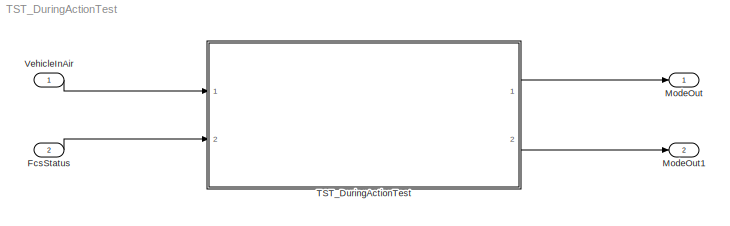
MODEL TST_DuringActionTest
KIND model
BLOCK [Inport] FcsStatus
  IconDisplay = Port number
  OutDataTypeStr = Bus: FCS_FlightControlSystem_Status
  Port = 2
  SID = 168
BLOCK [Outport] ModeOut
  IconDisplay = Port number
  OutDataTypeStr = int32
  PortDimensions = 1
  SID = 169
BLOCK [Outport] ModeOut1
  IconDisplay = Port number
  OutDataTypeStr = int32
  Port = 2
  PortDimensions = 1
  SID = 172
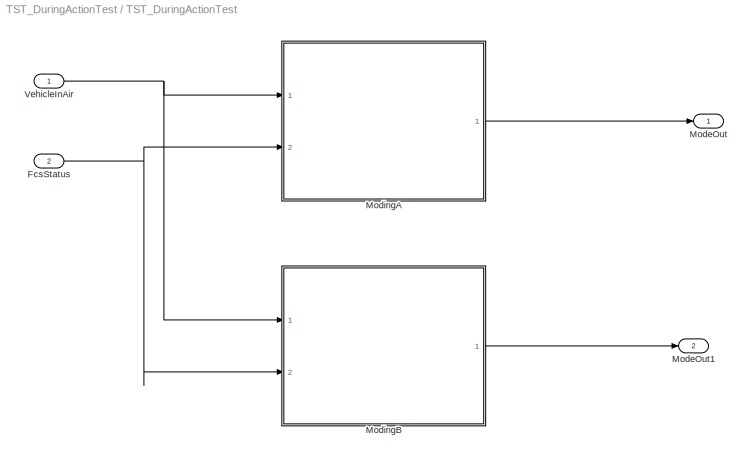
BLOCK [SubSystem] TST_DuringActionTest
  Ports = [2, 2]
  RequestExecContextInheritance = off
  SID = 160
  TreatAsAtomicUnit = on
BLOCK [Inport] TST_DuringActionTest/FcsStatus
  IconDisplay = Port number
  OutDataTypeStr = Bus: FCS_FlightControlSystem_Status
  Port = 2
  SID = 164
BLOCK [Outport] TST_DuringActionTest/ModeOut
  IconDisplay = Port number
  OutDataTypeStr = int32
  PortDimensions = 1
  SID = 166
BLOCK [Outport] TST_DuringActionTest/ModeOut1
  IconDisplay = Port number
  OutDataTypeStr = int32
  Port = 2
  PortDimensions = 1
  SID = 171
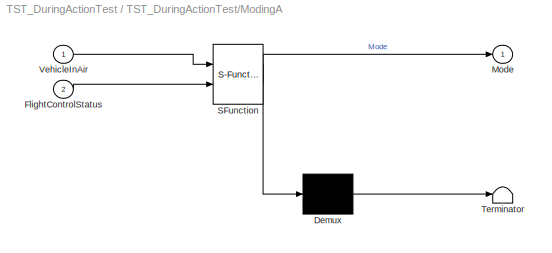
BLOCK [SubSystem] TST_DuringActionTest/ModingA
  ErrorFcn = Stateflow.Translate.translate
  PermitHierarchicalResolution = ExplicitOnly
  Ports = [2, 1]
  RequestExecContextInheritance = off
  SFBlockType = Chart
  SID = 165
  TreatAsAtomicUnit = on
BLOCK [Demux] TST_DuringActionTest/ModingA/ Demux 
  Outputs = 1
  Ports = [1, 1]
  SID = 165::154
BLOCK [S-Function] TST_DuringActionTest/ModingA/ SFunction 
  EnableBusSupport = off
  FunctionName = sf_sfun
  PortCounts = [2 2]
  Ports = [2, 2]
  SFcnIsStateOwnerBlock = off
  SFunctionDeploymentMode = off
  SID = 165::153
  Tag = Stateflow S-Function 1
BLOCK [Terminator] TST_DuringActionTest/ModingA/ Terminator 
  SID = 165::155
BLOCK [Inport] TST_DuringActionTest/ModingA/FlightControlStatus
  IconDisplay = Port number
  Port = 2
  SID = 165::145
BLOCK [Outport] TST_DuringActionTest/ModingA/Mode
  IconDisplay = Port number
  SID = 165::150
BLOCK [Inport] TST_DuringActionTest/ModingA/VehicleInAir
  IconDisplay = Port number
  SID = 165::144
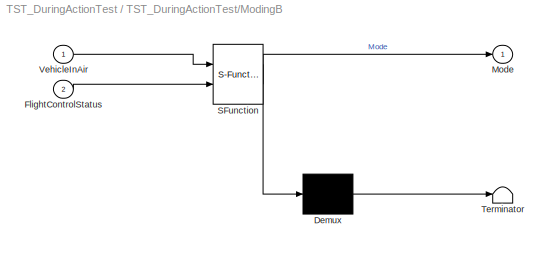
BLOCK [SubSystem] TST_DuringActionTest/ModingB
  ErrorFcn = Stateflow.Translate.translate
  PermitHierarchicalResolution = ExplicitOnly
  Ports = [2, 1]
  RequestExecContextInheritance = off
  SFBlockType = Chart
  SID = 173
  TreatAsAtomicUnit = on
BLOCK [Demux] TST_DuringActionTest/ModingB/ Demux 
  Outputs = 1
  Ports = [1, 1]
  SID = 173::154
BLOCK [S-Function] TST_DuringActionTest/ModingB/ SFunction 
  EnableBusSupport = off
  FunctionName = sf_sfun
  PortCounts = [2 2]
  Ports = [2, 2]
  SFcnIsStateOwnerBlock = off
  SFunctionDeploymentMode = off
  SID = 173::153
  Tag = Stateflow S-Function 2
BLOCK [Terminator] TST_DuringActionTest/ModingB/ Terminator 
  SID = 173::155
BLOCK [Inport] TST_DuringActionTest/ModingB/FlightControlStatus
  IconDisplay = Port number
  Port = 2
  SID = 173::145
BLOCK [Outport] TST_DuringActionTest/ModingB/Mode
  IconDisplay = Port number
  SID = 173::150
BLOCK [Inport] TST_DuringActionTest/ModingB/VehicleInAir
  IconDisplay = Port number
  SID = 173::144
BLOCK [Inport] TST_DuringActionTest/VehicleInAir
  IconDisplay = Port number
  OutDataTypeStr = boolean
  PortDimensions = 1
  SID = 163
BLOCK [Inport] VehicleInAir
  IconDisplay = Port number
  OutDataTypeStr = boolean
  PortDimensions = 1
  SID = 167
LINE FcsStatus:1 -> TST_DuringActionTest:2
NET TST_DuringActionTest/FcsStatus:1 -> TST_DuringActionTest/ModingA:2, TST_DuringActionTest/ModingB:2
LINE TST_DuringActionTest/ModingA/ Demux :1 -> TST_DuringActionTest/ModingA/ Terminator :1
LINE TST_DuringActionTest/ModingA/ SFunction :1 -> TST_DuringActionTest/ModingA/ Demux :1
LINE TST_DuringActionTest/ModingA/ SFunction :2 -> TST_DuringActionTest/ModingA/Mode:1
LINE TST_DuringActionTest/ModingA/FlightControlStatus:1 -> TST_DuringActionTest/ModingA/ SFunction :2
LINE TST_DuringActionTest/ModingA/VehicleInAir:1 -> TST_DuringActionTest/ModingA/ SFunction :1
LINE TST_DuringActionTest/ModingA:1 -> TST_DuringActionTest/ModeOut:1
LINE TST_DuringActionTest/ModingB/ Demux :1 -> TST_DuringActionTest/ModingB/ Terminator :1
LINE TST_DuringActionTest/ModingB/ SFunction :1 -> TST_DuringActionTest/ModingB/ Demux :1
LINE TST_DuringActionTest/ModingB/ SFunction :2 -> TST_DuringActionTest/ModingB/Mode:1
LINE TST_DuringActionTest/ModingB/FlightControlStatus:1 -> TST_DuringActionTest/ModingB/ SFunction :2
LINE TST_DuringActionTest/ModingB/VehicleInAir:1 -> TST_DuringActionTest/ModingB/ SFunction :1
LINE TST_DuringActionTest/ModingB:1 -> TST_DuringActionTest/ModeOut1:1
NET TST_DuringActionTest/VehicleInAir:1 -> TST_DuringActionTest/ModingA:1, TST_DuringActionTest/ModingB:1
LINE TST_DuringActionTest:1 -> ModeOut:1
LINE TST_DuringActionTest:2 -> ModeOut1:1
LINE VehicleInAir:1 -> TST_DuringActionTest:1
note: NET lines group one-source signal fan-out (src -> all destinations, sorted); 1:1 wires keep LINE
CHART TST_DuringActionTest/ModingA states=5 transitions=5
  STATE_LABEL 'TopStateA\\nduring:\\nMode = int32(111);'
  STATE_LABEL 'Autoland\\nentry:\\nMode = int32(3);\\nduring:\\nMode = int32(-3);'
  STATE_LABEL 'Off\\nentry:\\nMode = int32(1);'
  STATE_LABEL 'Launch\\nentry:\\nMode = int32(2);'
  STATE_LABEL 'TopStateB\\nduring:\\nMode = int32(222);'
CHART TST_DuringActionTest/ModingB states=5 transitions=7
  STATE_LABEL 'TopStateA\\nduring:\\nMode = int32(111);'
  STATE_LABEL 'Autoland\\nentry:\\nMode = int32(3);\\nduring:\\nMode = int32(-3);'
  STATE_LABEL 'Off\\nentry:\\nMode = int32(1);'
  STATE_LABEL 'Launch\\nentry:\\nMode = int32(2);\\nduring:\\nMode = int32(-2);'
  STATE_LABEL 'TopStateB\\nduring:\\nMode = int32(222);'
